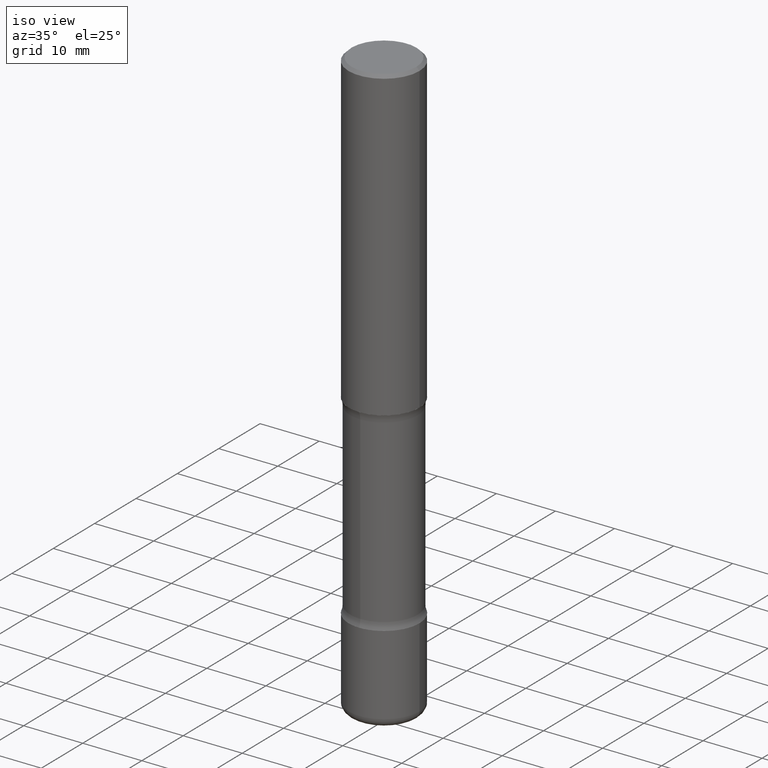
[diagram: clean part render]
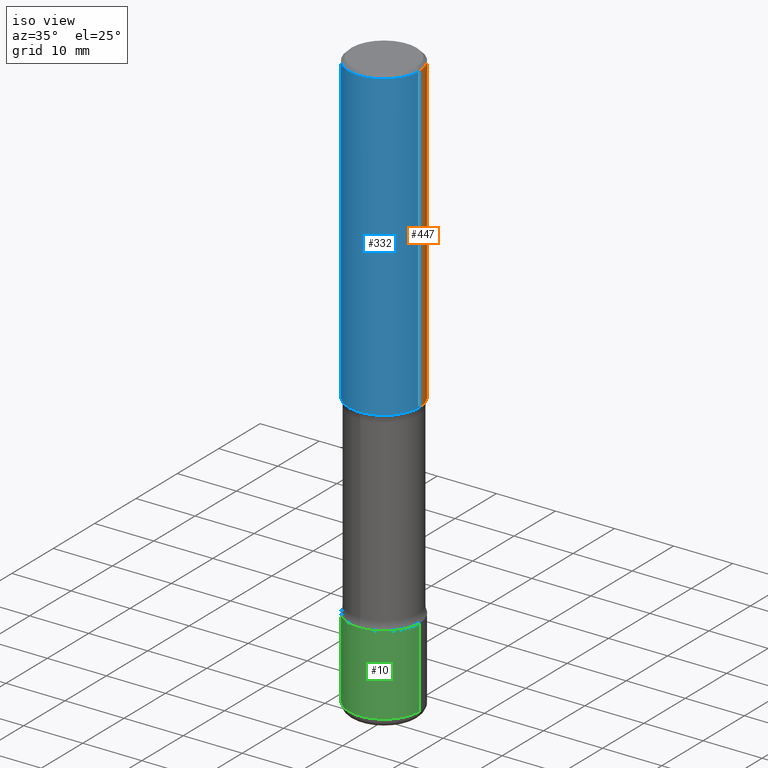
[diagram: same view with three faces highlighted in distinct colors, each labeled with its STEP entity id]
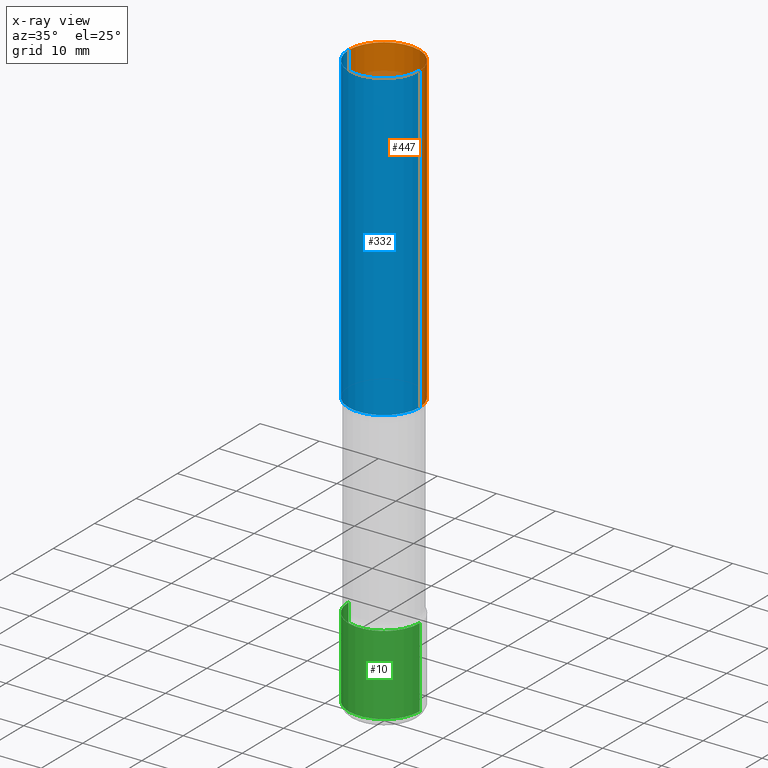
[diagram: x-ray of the same camera — body ghosted, the three highlighted faces saturated]
A machine part, iso view with three faces highlighted in distinct colors.
The next image is the same camera in x-ray (body ghosted, the three faces saturated) — at least one of them is partly hidden behind the body in this view.
Their STEP definitions:

[orange] entity #447 — the highlighted cylindrical surface (partial cylindrical patch) has radius 5.9995 mm, axis along (-0, 0, 1).
#44 = DIRECTION ( 'NONE',  ( 1.000000000000000000, -6.982962677686266711E-15, 4.876176775795935232E-29 ) ) ;
#136 = CARTESIAN_POINT ( 'NONE',  ( -0.2362000000000004096, 1.678301941865359550E-15, -1.161852468318210719E-29 ) ) ;
#162 = VERTEX_POINT ( 'NONE', #508 ) ;
#166 = VERTEX_POINT ( 'NONE', #452 ) ;
#174 = VECTOR ( 'NONE', #441, 39.37007874015748143 ) ;
#211 = EDGE_LOOP ( 'NONE', ( #476, #436, #268, #272 ) ) ;
#224 = AXIS2_PLACEMENT_3D ( 'NONE', #231, #358, #233 ) ;
#228 = FACE_OUTER_BOUND ( 'NONE', #211, .T. ) ;
#231 = CARTESIAN_POINT ( 'NONE',  ( 4.890937612370289799E-31, -6.982962677686315028E-17, -0.02000000000000006981 ) ) ;
#233 = DIRECTION ( 'NONE',  ( 1.000000000000000000, -6.982962677686266711E-15, 0.000000000000000000 ) ) ;
#250 = CARTESIAN_POINT ( 'NONE',  ( -0.2362000000000002709, 1.579546157692635002E-15, -0.02000000000000006981 ) ) ;
#268 = ORIENTED_EDGE ( 'NONE', *, *, #492, .F. ) ;
#272 = ORIENTED_EDGE ( 'NONE', *, *, #396, .F. ) ;
#273 = CYLINDRICAL_SURFACE ( 'NONE', #308, 0.2362000000000004096 ) ;
#308 = AXIS2_PLACEMENT_3D ( 'NONE', #398, #309, #44 ) ;
#309 = DIRECTION ( 'NONE',  ( -2.445468806185136597E-29, 3.491481338843145583E-15, 1.000000000000000000 ) ) ;
#310 = VERTEX_POINT ( 'NONE', #250 ) ;
#354 = LINE ( 'NONE', #136, #522 ) ;
#358 = DIRECTION ( 'NONE',  ( -2.445468806185136597E-29, 3.491481338843145583E-15, 1.000000000000000000 ) ) ;
#392 = CARTESIAN_POINT ( 'NONE',  ( -0.2362000000000005207, -1.930493169962913045E-15, -2.047200000000000131 ) ) ;
#393 = VERTEX_POINT ( 'NONE', #392 ) ;
#396 = EDGE_CURVE ( 'NONE', #162, #166, #482, .T. ) ;
#398 = CARTESIAN_POINT ( 'NONE',  ( 0.000000000000000000, 0.000000000000000000, 0.000000000000000000 ) ) ;
#413 = DIRECTION ( 'NONE',  ( 1.000000000000000000, -6.982962677686269077E-15, 0.000000000000000000 ) ) ;
#416 = DIRECTION ( 'NONE',  ( -2.445468806185136597E-29, 3.491481338843145583E-15, 1.000000000000000000 ) ) ;
#423 = CIRCLE ( 'NONE', #506, 0.2362000000000005207 ) ;
#436 = ORIENTED_EDGE ( 'NONE', *, *, #485, .T. ) ;
#441 = DIRECTION ( 'NONE',  ( -2.445468806185136877E-29, 3.491481338843145188E-15, 1.000000000000000000 ) ) ;
#447 = ADVANCED_FACE ( 'NONE', ( #228 ), #273, .T. ) ;
#452 = CARTESIAN_POINT ( 'NONE',  ( 0.2362000000000002709, -1.690279253850500743E-15, -0.02000000000000006981 ) ) ;
#464 = CIRCLE ( 'NONE', #224, 0.2362000000000002709 ) ;
#476 = ORIENTED_EDGE ( 'NONE', *, *, #534, .T. ) ;
#477 = CARTESIAN_POINT ( 'NONE',  ( 0.2362000000000004096, -1.649375784469499089E-15, 1.151752954443001910E-29 ) ) ;
#482 = LINE ( 'NONE', #477, #174 ) ;
#485 = EDGE_CURVE ( 'NONE', #393, #310, #354, .T. ) ;
#492 = EDGE_CURVE ( 'NONE', #166, #310, #464, .T. ) ;
#504 = CARTESIAN_POINT ( 'NONE',  ( 5.006363740022211680E-29, -7.147760596879688202E-15, -2.047200000000000131 ) ) ;
#506 = AXIS2_PLACEMENT_3D ( 'NONE', #504, #416, #413 ) ;
#508 = CARTESIAN_POINT ( 'NONE',  ( 0.2362000000000005207, -8.797136381349187883E-15, -2.047200000000000131 ) ) ;
#522 = VECTOR ( 'NONE', #528, 39.37007874015748143 ) ;
#528 = DIRECTION ( 'NONE',  ( -2.445468806185136877E-29, 3.491481338843145188E-15, 1.000000000000000000 ) ) ;
#534 = EDGE_CURVE ( 'NONE', #162, #393, #423, .T. ) ;

[blue] entity #332 — the highlighted cylindrical surface (partial cylindrical patch) has radius 5.9995 mm, axis along (-0, 0, 1).
#3 = EDGE_LOOP ( 'NONE', ( #406, #359, #556, #219 ) ) ;
#29 = AXIS2_PLACEMENT_3D ( 'NONE', #210, #426, #79 ) ;
#79 = DIRECTION ( 'NONE',  ( 1.000000000000000000, -6.982962677686266711E-15, 4.876176775795935232E-29 ) ) ;
#83 = EDGE_CURVE ( 'NONE', #310, #166, #490, .T. ) ;
#109 = DIRECTION ( 'NONE',  ( -2.445468806185136597E-29, 3.491481338843145583E-15, 1.000000000000000000 ) ) ;
#136 = CARTESIAN_POINT ( 'NONE',  ( -0.2362000000000004096, 1.678301941865359550E-15, -1.161852468318210719E-29 ) ) ;
#137 = AXIS2_PLACEMENT_3D ( 'NONE', #424, #165, #169 ) ;
#162 = VERTEX_POINT ( 'NONE', #508 ) ;
#165 = DIRECTION ( 'NONE',  ( -2.445468806185136597E-29, 3.491481338843145583E-15, 1.000000000000000000 ) ) ;
#166 = VERTEX_POINT ( 'NONE', #452 ) ;
#169 = DIRECTION ( 'NONE',  ( 1.000000000000000000, -6.982962677686269077E-15, 0.000000000000000000 ) ) ;
#174 = VECTOR ( 'NONE', #441, 39.37007874015748143 ) ;
#199 = DIRECTION ( 'NONE',  ( 1.000000000000000000, -6.982962677686266711E-15, 0.000000000000000000 ) ) ;
#204 = AXIS2_PLACEMENT_3D ( 'NONE', #505, #109, #199 ) ;
#210 = CARTESIAN_POINT ( 'NONE',  ( 0.000000000000000000, 0.000000000000000000, 0.000000000000000000 ) ) ;
#215 = FACE_OUTER_BOUND ( 'NONE', #3, .T. ) ;
#219 = ORIENTED_EDGE ( 'NONE', *, *, #83, .F. ) ;
#250 = CARTESIAN_POINT ( 'NONE',  ( -0.2362000000000002709, 1.579546157692635002E-15, -0.02000000000000006981 ) ) ;
#301 = EDGE_CURVE ( 'NONE', #393, #162, #357, .T. ) ;
#310 = VERTEX_POINT ( 'NONE', #250 ) ;
#332 = ADVANCED_FACE ( 'NONE', ( #215 ), #465, .T. ) ;
#354 = LINE ( 'NONE', #136, #522 ) ;
#357 = CIRCLE ( 'NONE', #137, 0.2362000000000005207 ) ;
#359 = ORIENTED_EDGE ( 'NONE', *, *, #301, .T. ) ;
#392 = CARTESIAN_POINT ( 'NONE',  ( -0.2362000000000005207, -1.930493169962913045E-15, -2.047200000000000131 ) ) ;
#393 = VERTEX_POINT ( 'NONE', #392 ) ;
#396 = EDGE_CURVE ( 'NONE', #162, #166, #482, .T. ) ;
#406 = ORIENTED_EDGE ( 'NONE', *, *, #485, .F. ) ;
#424 = CARTESIAN_POINT ( 'NONE',  ( 5.006363740022211680E-29, -7.147760596879688202E-15, -2.047200000000000131 ) ) ;
#426 = DIRECTION ( 'NONE',  ( -2.445468806185136597E-29, 3.491481338843145583E-15, 1.000000000000000000 ) ) ;
#441 = DIRECTION ( 'NONE',  ( -2.445468806185136877E-29, 3.491481338843145188E-15, 1.000000000000000000 ) ) ;
#452 = CARTESIAN_POINT ( 'NONE',  ( 0.2362000000000002709, -1.690279253850500743E-15, -0.02000000000000006981 ) ) ;
#465 = CYLINDRICAL_SURFACE ( 'NONE', #29, 0.2362000000000004096 ) ;
#477 = CARTESIAN_POINT ( 'NONE',  ( 0.2362000000000004096, -1.649375784469499089E-15, 1.151752954443001910E-29 ) ) ;
#482 = LINE ( 'NONE', #477, #174 ) ;
#485 = EDGE_CURVE ( 'NONE', #393, #310, #354, .T. ) ;
#490 = CIRCLE ( 'NONE', #204, 0.2362000000000002709 ) ;
#505 = CARTESIAN_POINT ( 'NONE',  ( 4.890937612370289799E-31, -6.982962677686315028E-17, -0.02000000000000006981 ) ) ;
#508 = CARTESIAN_POINT ( 'NONE',  ( 0.2362000000000005207, -8.797136381349187883E-15, -2.047200000000000131 ) ) ;
#522 = VECTOR ( 'NONE', #528, 39.37007874015748143 ) ;
#528 = DIRECTION ( 'NONE',  ( -2.445468806185136877E-29, 3.491481338843145188E-15, 1.000000000000000000 ) ) ;
#556 = ORIENTED_EDGE ( 'NONE', *, *, #396, .T. ) ;

[green] entity #10 — the highlighted cylindrical surface (partial cylindrical patch) has radius 5.9995 mm, axis along (-0, 0, 1).
#4 = EDGE_CURVE ( 'NONE', #549, #187, #442, .T. ) ;
#9 = FACE_OUTER_BOUND ( 'NONE', #130, .T. ) ;
#10 = ADVANCED_FACE ( 'NONE', ( #9 ), #181, .T. ) ;
#27 = AXIS2_PLACEMENT_3D ( 'NONE', #156, #325, #63 ) ;
#37 = AXIS2_PLACEMENT_3D ( 'NONE', #177, #529, #493 ) ;
#63 = DIRECTION ( 'NONE',  ( 1.000000000000000000, -6.982962677686263555E-15, 0.000000000000000000 ) ) ;
#81 = CIRCLE ( 'NONE', #27, 0.2362000000000005762 ) ;
#90 = VERTEX_POINT ( 'NONE', #331 ) ;
#97 = CARTESIAN_POINT ( 'NONE',  ( 0.2362000000000004651, -1.649375784469499483E-15, 1.151752954443002330E-29 ) ) ;
#105 = CIRCLE ( 'NONE', #547, 0.2362000000000004096 ) ;
#107 = EDGE_CURVE ( 'NONE', #90, #487, #371, .T. ) ;
#113 = CARTESIAN_POINT ( 'NONE',  ( 0.2362000000000004096, -1.518899126836933270E-14, -3.877900000000000347 ) ) ;
#118 = VECTOR ( 'NONE', #483, 39.37007874015748143 ) ;
#130 = EDGE_LOOP ( 'NONE', ( #339, #390, #253, #386 ) ) ;
#135 = EDGE_CURVE ( 'NONE', #90, #549, #81, .T. ) ;
#148 = CARTESIAN_POINT ( 'NONE',  ( -0.2362000000000004651, 1.678301941865359944E-15, -1.161852468318210999E-29 ) ) ;
#156 = CARTESIAN_POINT ( 'NONE',  ( 9.483283483505341216E-29, -1.353961548389983459E-14, -3.877900000000000347 ) ) ;
#177 = CARTESIAN_POINT ( 'NONE',  ( 0.000000000000000000, 0.000000000000000000, 0.000000000000000000 ) ) ;
#181 = CYLINDRICAL_SURFACE ( 'NONE', #37, 0.2362000000000004651 ) ;
#187 = VERTEX_POINT ( 'NONE', #502 ) ;
#253 = ORIENTED_EDGE ( 'NONE', *, *, #4, .T. ) ;
#278 = DIRECTION ( 'NONE',  ( 1.000000000000000000, -6.982962677686268288E-15, 0.000000000000000000 ) ) ;
#287 = DIRECTION ( 'NONE',  ( -2.445468806185136597E-29, 3.491481338843145583E-15, 1.000000000000000000 ) ) ;
#316 = CARTESIAN_POINT ( 'NONE',  ( -0.2362000000000004096, -1.093345237623690843E-14, -3.346399999999999597 ) ) ;
#325 = DIRECTION ( 'NONE',  ( -2.445468806185136597E-29, 3.491481338843145583E-15, 1.000000000000000000 ) ) ;
#331 = CARTESIAN_POINT ( 'NONE',  ( -0.2362000000000004096, -1.186131354203447347E-14, -3.877900000000000347 ) ) ;
#339 = ORIENTED_EDGE ( 'NONE', *, *, #107, .F. ) ;
#355 = VECTOR ( 'NONE', #368, 39.37007874015748143 ) ;
#368 = DIRECTION ( 'NONE',  ( -2.445468806185136877E-29, 3.491481338843145188E-15, 1.000000000000000000 ) ) ;
#371 = LINE ( 'NONE', #148, #355 ) ;
#386 = ORIENTED_EDGE ( 'NONE', *, *, #531, .F. ) ;
#390 = ORIENTED_EDGE ( 'NONE', *, *, #135, .T. ) ;
#410 = CARTESIAN_POINT ( 'NONE',  ( 8.183516813017940998E-29, -1.168389315230470136E-14, -3.346399999999999597 ) ) ;
#442 = LINE ( 'NONE', #97, #118 ) ;
#483 = DIRECTION ( 'NONE',  ( -2.445468806185136877E-29, 3.491481338843145188E-15, 1.000000000000000000 ) ) ;
#487 = VERTEX_POINT ( 'NONE', #316 ) ;
#493 = DIRECTION ( 'NONE',  ( 1.000000000000000000, -6.982962677686266711E-15, 4.876176775795935793E-29 ) ) ;
#502 = CARTESIAN_POINT ( 'NONE',  ( 0.2362000000000004096, -1.333326893677419946E-14, -3.346399999999999597 ) ) ;
#529 = DIRECTION ( 'NONE',  ( -2.445468806185136597E-29, 3.491481338843145583E-15, 1.000000000000000000 ) ) ;
#531 = EDGE_CURVE ( 'NONE', #487, #187, #105, .T. ) ;
#547 = AXIS2_PLACEMENT_3D ( 'NONE', #410, #287, #278 ) ;
#549 = VERTEX_POINT ( 'NONE', #113 ) ;